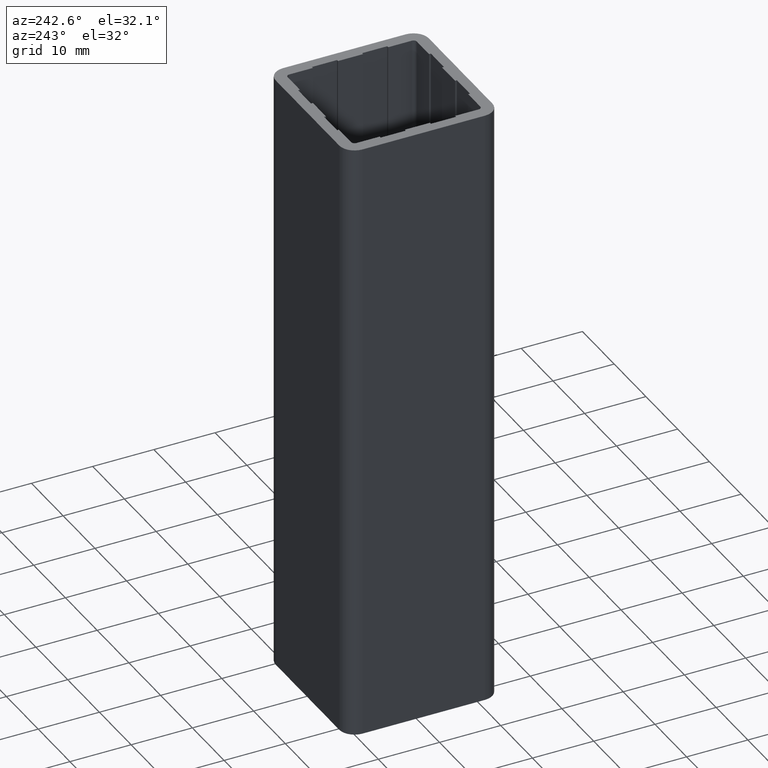
[diagram: clean part render]
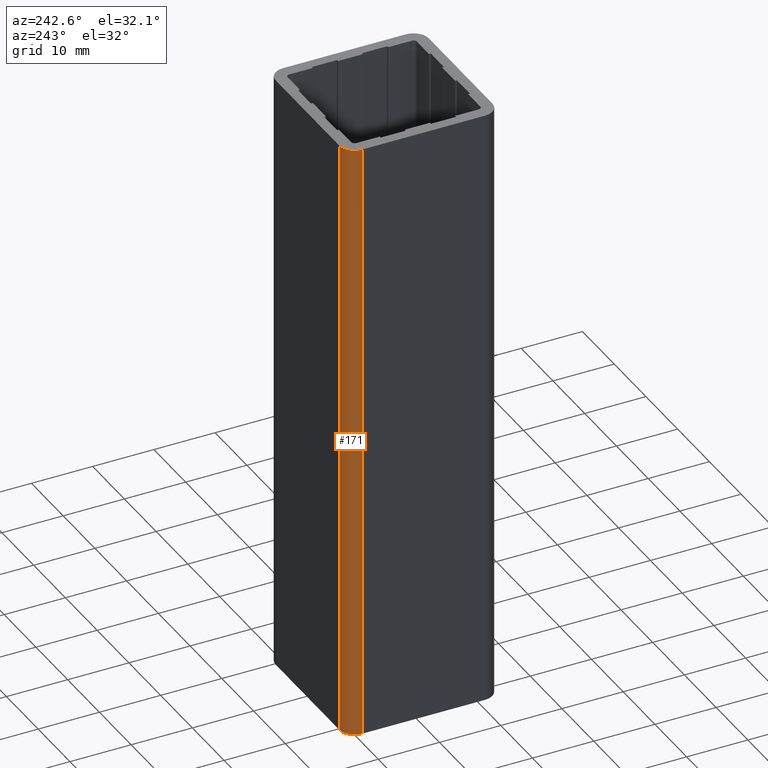
[diagram: same view with one face highlighted and labeled with its STEP entity id]
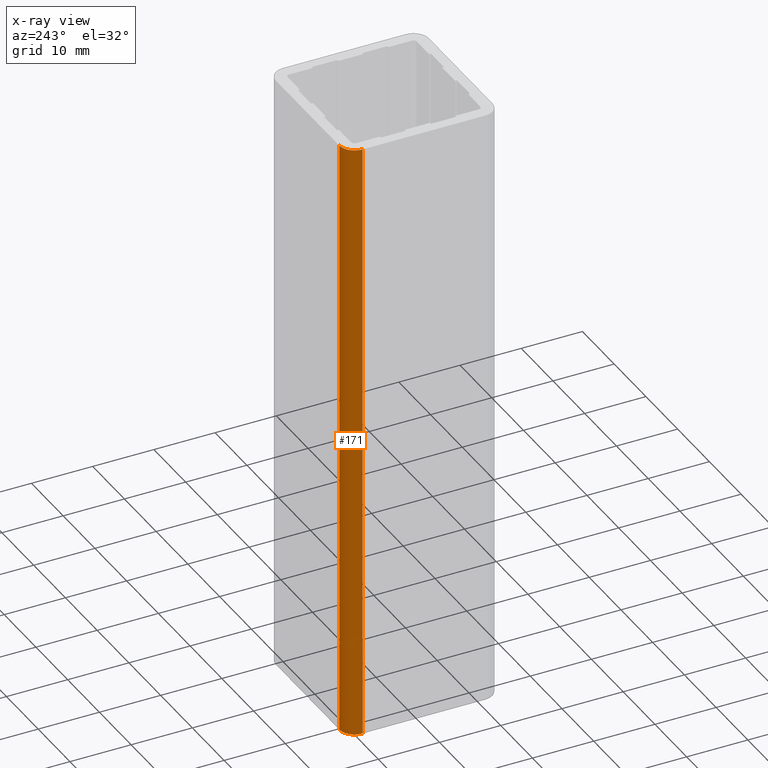
[diagram: x-ray of the same camera — body ghosted, the highlighted face saturated]
A machine part, auxiliary view. The second image highlights one B-rep face of the part: STEP entity #171.
The next image is the same camera in x-ray: the body ghosted, the highlighted face saturated — about 0% of this face is hidden behind the body in this view.
In plain terms, the highlighted cylindrical surface (edge-blend (fillet) strip) has radius 2.5 mm, axis along (0, 0, 1).
Its self-contained STEP definition (entity closure, byte-faithful):
#113=CARTESIAN_POINT('',(-22.500000000000000,12.500000000000000,0.0));
#114=VERTEX_POINT('',#113);
#121=CARTESIAN_POINT('',(-22.500000000000000,12.500000000000000,100.0));
#122=VERTEX_POINT('',#121);
#123=CARTESIAN_POINT('',(-22.500000000000000,12.500000000000000,0.0));
#124=DIRECTION('',(0.0,0.0,1.0));
#125=VECTOR('',#124,100.0);
#126=LINE('',#123,#125);
#127=EDGE_CURVE('',#114,#122,#126,.T.);
#139=CARTESIAN_POINT('',(-22.500000000000000,10.0,0.0));
#140=DIRECTION('',(0.0,0.0,1.0));
#141=DIRECTION('',(1.0,0.0,0.0));
#142=AXIS2_PLACEMENT_3D('',#139,#140,#141);
#143=CYLINDRICAL_SURFACE('',#142,2.500000000000000);
#144=CARTESIAN_POINT('',(-25.0,10.0,0.0));
#145=VERTEX_POINT('',#144);
#146=CARTESIAN_POINT('',(-22.500000000000000,10.0,0.0));
#147=DIRECTION('',(0.0,0.0,1.0));
#148=DIRECTION('',(1.0,0.0,0.0));
#149=AXIS2_PLACEMENT_3D('',#146,#147,#148);
#150=CIRCLE('',#149,2.500000000000000);
#151=EDGE_CURVE('',#114,#145,#150,.T.);
#152=ORIENTED_EDGE('',*,*,#151,.T.);
#153=CARTESIAN_POINT('',(-25.0,10.0,100.0));
#154=VERTEX_POINT('',#153);
#155=CARTESIAN_POINT('',(-25.0,10.0,0.0));
#156=DIRECTION('',(0.0,0.0,1.0));
#157=VECTOR('',#156,100.0);
#158=LINE('',#155,#157);
#159=EDGE_CURVE('',#145,#154,#158,.T.);
#160=ORIENTED_EDGE('',*,*,#159,.T.);
#161=CARTESIAN_POINT('',(-22.500000000000000,10.0,100.0));
#162=DIRECTION('',(0.0,0.0,1.0));
#163=DIRECTION('',(1.0,0.0,0.0));
#164=AXIS2_PLACEMENT_3D('',#161,#162,#163);
#165=CIRCLE('',#164,2.500000000000000);
#166=EDGE_CURVE('',#122,#154,#165,.T.);
#167=ORIENTED_EDGE('',*,*,#166,.F.);
#168=ORIENTED_EDGE('',*,*,#127,.F.);
#169=EDGE_LOOP('',(#152,#160,#167,#168));
#170=FACE_OUTER_BOUND('',#169,.T.);
#171=ADVANCED_FACE('',(#170),#143,.T.);